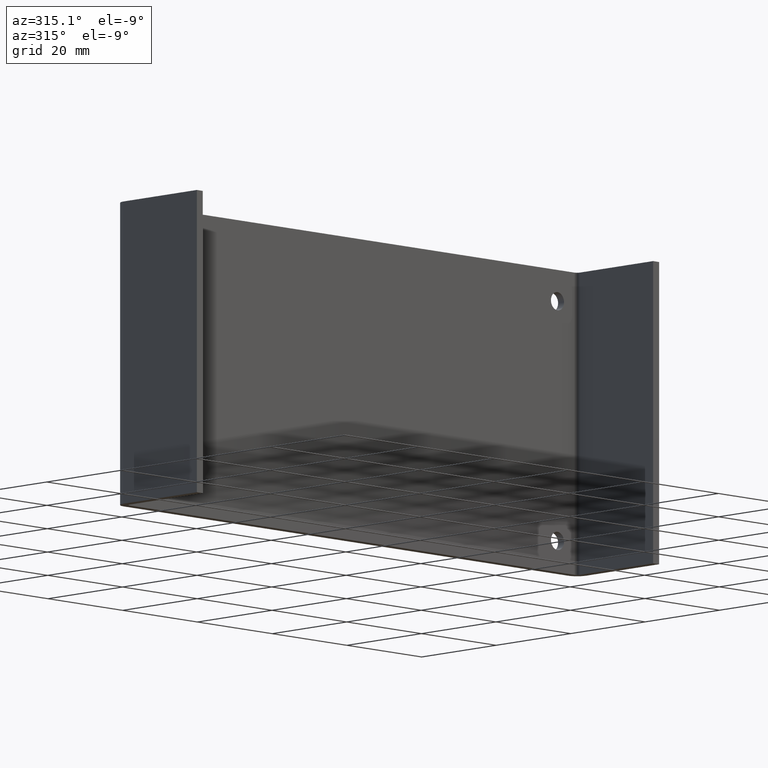
[diagram: clean part render]
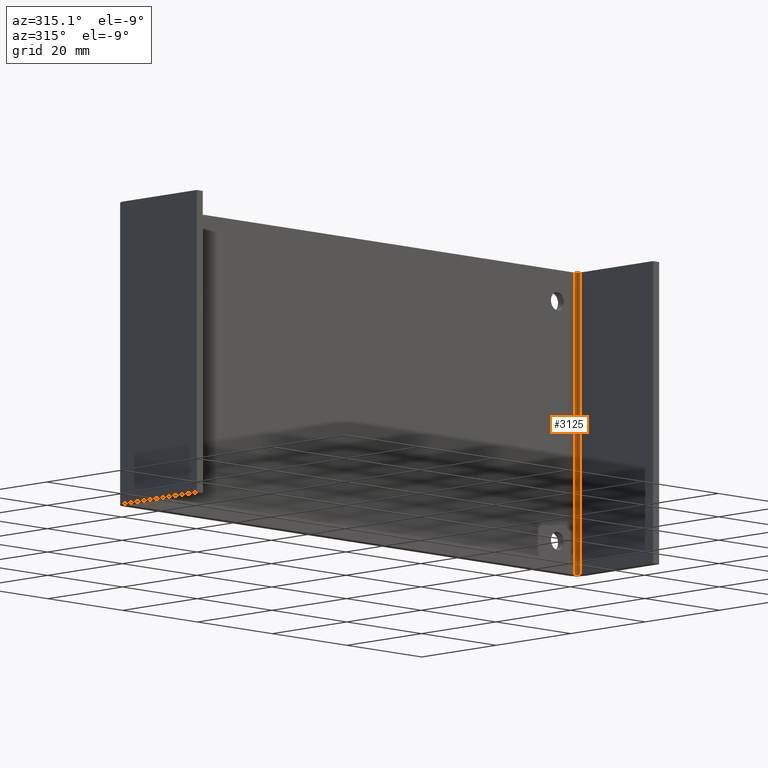
[diagram: same view with one face highlighted and labeled with its STEP entity id]
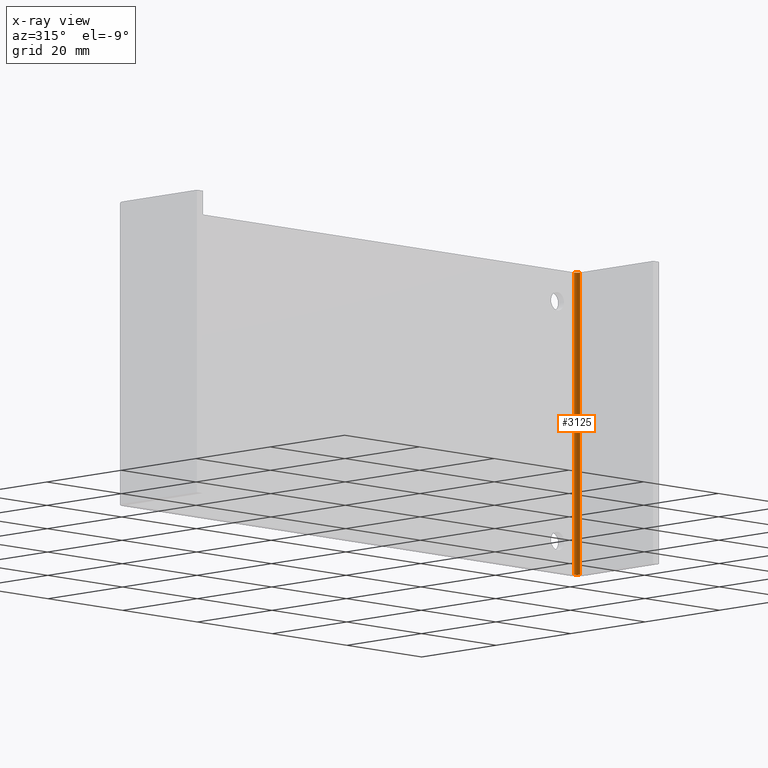
[diagram: x-ray of the same camera — body ghosted, the highlighted face saturated]
A machine part, auxiliary view. The second image highlights one B-rep face of the part: STEP entity #3125.
The next image is the same camera in x-ray: the body ghosted, the highlighted face saturated — about 0% of this face is hidden behind the body in this view.
In plain terms, the highlighted face is a freeform B-spline surface patch.
Its self-contained STEP definition (entity closure, byte-faithful):
#2834=CARTESIAN_POINT('',(59.450000000000003,-1.600000000000000,29.0));
#2835=VERTEX_POINT('',#2834);
#2841=CARTESIAN_POINT('',(60.250000000000000,-2.400000000000000,29.0));
#2842=VERTEX_POINT('',#2841);
#2843=CARTESIAN_POINT('',(60.250000000000007,-2.400000000000000,29.0));
#2844=CARTESIAN_POINT('',(60.250000000000007,-1.600000000000000,29.0));
#2845=CARTESIAN_POINT('',(59.450000000000003,-1.600000000000000,29.0));
#2853=(BOUNDED_CURVE()B_SPLINE_CURVE(2,(#2843,#2844,#2845),.UNSPECIFIED.,.F.,.U.)CURVE()GEOMETRIC_REPRESENTATION_ITEM()QUASI_UNIFORM_CURVE()RATIONAL_B_SPLINE_CURVE((1.0,0.707106781186548,1.0))REPRESENTATION_ITEM(''));
#2854=EDGE_CURVE('',#2842,#2835,#2853,.T.);
#2958=CARTESIAN_POINT('',(60.250000000000000,-2.400000000000000,-29.0));
#2959=VERTEX_POINT('',#2958);
#2965=CARTESIAN_POINT('',(59.450000000000003,-1.600000000000000,-29.0));
#2966=VERTEX_POINT('',#2965);
#2967=CARTESIAN_POINT('',(60.250000000000007,-2.400000000000000,-29.0));
#2968=CARTESIAN_POINT('',(60.250000000000007,-1.600000000000000,-29.0));
#2969=CARTESIAN_POINT('',(59.450000000000003,-1.600000000000000,-29.0));
#2977=(BOUNDED_CURVE()B_SPLINE_CURVE(2,(#2967,#2968,#2969),.UNSPECIFIED.,.F.,.U.)CURVE()GEOMETRIC_REPRESENTATION_ITEM()QUASI_UNIFORM_CURVE()RATIONAL_B_SPLINE_CURVE((1.0,0.707106781186548,1.0))REPRESENTATION_ITEM(''));
#2978=EDGE_CURVE('',#2959,#2966,#2977,.T.);
#3091=CARTESIAN_POINT('',(60.250000000000000,-2.400000000000000,-29.0));
#3092=CARTESIAN_POINT('',(60.250000000000000,-2.400000000000000,29.0));
#3093=QUASI_UNIFORM_CURVE('',1,(#3091,#3092),.UNSPECIFIED.,.F.,.U.);
#3094=EDGE_CURVE('',#2959,#2842,#3093,.T.);
#3101=CARTESIAN_POINT('',(59.443018771601302,-1.600030461548663,-30.450000000000010));
#3102=CARTESIAN_POINT('',(59.443018771601302,-1.600030461548663,30.486250000000009));
#3103=CARTESIAN_POINT('',(60.300881073609403,-1.592544010656352,-30.449999999999999));
#3104=CARTESIAN_POINT('',(60.300881073609403,-1.592544010656352,30.486250000000009));
#3105=CARTESIAN_POINT('',(60.248507838737503,-2.448838831627874,-30.450000000000010));
#3106=CARTESIAN_POINT('',(60.248507838737503,-2.448838831627874,30.486250000000009));
#3114=(BOUNDED_SURFACE()B_SPLINE_SURFACE(1,2,((#3101,#3103,#3105),(#3102,#3104,#3106)),.UNSPECIFIED.,.F.,.F.,.U.)B_SPLINE_SURFACE_WITH_KNOTS((2,2),(3,3),(0.0,60.936250000000022),(0.0,1.0),.UNSPECIFIED.)GEOMETRIC_REPRESENTATION_ITEM()RATIONAL_B_SPLINE_SURFACE(((1.0,0.681998360062499,1.0),(1.0,0.681998360062499,1.0)))REPRESENTATION_ITEM('')SURFACE());
#3115=ORIENTED_EDGE('',*,*,#2854,.T.);
#3116=CARTESIAN_POINT('',(59.450000000000003,-1.600000000000000,-29.0));
#3117=CARTESIAN_POINT('',(59.450000000000003,-1.600000000000000,29.0));
#3118=QUASI_UNIFORM_CURVE('',1,(#3116,#3117),.UNSPECIFIED.,.F.,.U.);
#3119=EDGE_CURVE('',#2966,#2835,#3118,.T.);
#3120=ORIENTED_EDGE('',*,*,#3119,.F.);
#3121=ORIENTED_EDGE('',*,*,#2978,.F.);
#3122=ORIENTED_EDGE('',*,*,#3094,.T.);
#3123=EDGE_LOOP('',(#3115,#3120,#3121,#3122));
#3124=FACE_OUTER_BOUND('',#3123,.T.);
#3125=ADVANCED_FACE('',(#3124),#3114,.F.);